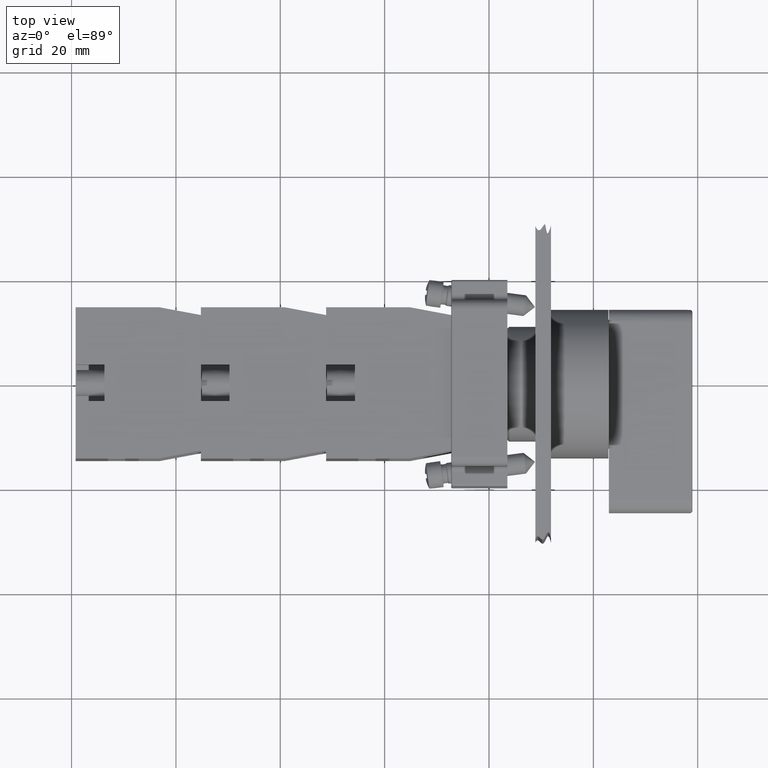
[diagram: clean part render]
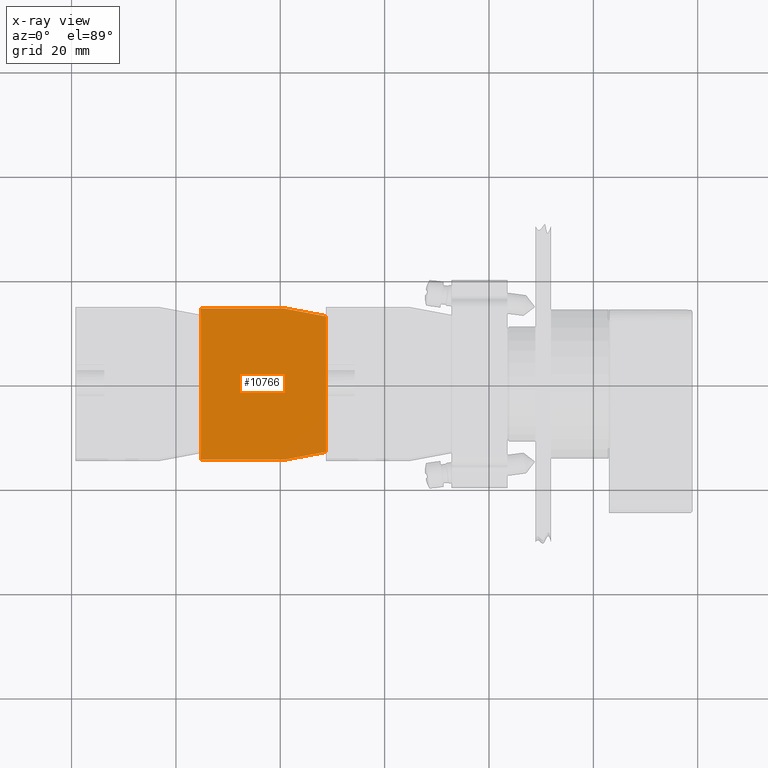
[diagram: x-ray — body ghosted, one internal face saturated and labeled with its STEP entity id]
A machine part, top view, then the same camera in x-ray: the body is ghosted and one INTERNAL B-rep face — a face not visible from any outside direction — is saturated and labeled: STEP entity #10766.
In plain terms, the highlighted planar face has unit normal (-0, -0, 1).
Its self-contained STEP definition (entity closure, byte-faithful):
#9071=CARTESIAN_POINT('',(-44.936741828918471,23.797073323279623,0.0));
#9072=VERTEX_POINT('',#9071);
#9079=CARTESIAN_POINT('',(-44.936741828918457,7.797073323279626,0.0));
#9080=VERTEX_POINT('',#9079);
#9081=CARTESIAN_POINT('',(-44.936741828918457,7.797073323279626,0.0));
#9082=DIRECTION('',(0.0,1.0,0.0));
#9083=VECTOR('',#9082,15.999999999999996);
#9084=LINE('',#9081,#9083);
#9085=EDGE_CURVE('',#9080,#9072,#9084,.T.);
#9262=CARTESIAN_POINT('',(-43.436741828918457,-0.202926676720380,0.0));
#9263=VERTEX_POINT('',#9262);
#9270=CARTESIAN_POINT('',(-17.436741828918457,-0.202926676720377,0.0));
#9271=VERTEX_POINT('',#9270);
#9272=CARTESIAN_POINT('',(-17.436741828918457,-0.202926676720377,0.0));
#9273=DIRECTION('',(-1.0,0.0,0.0));
#9274=VECTOR('',#9273,26.0);
#9275=LINE('',#9272,#9274);
#9276=EDGE_CURVE('',#9271,#9263,#9275,.T.);
#10620=CARTESIAN_POINT('',(-15.936741828918466,23.797073323279626,0.0));
#10621=VERTEX_POINT('',#10620);
#10628=CARTESIAN_POINT('',(-44.936741828918471,23.797073323279623,0.0));
#10629=DIRECTION('',(1.0,0.0,0.0));
#10630=VECTOR('',#10629,29.000000000000007);
#10631=LINE('',#10628,#10630);
#10632=EDGE_CURVE('',#9072,#10621,#10631,.T.);
#10668=CARTESIAN_POINT('',(-15.936741828918466,7.797073323279626,0.0));
#10669=VERTEX_POINT('',#10668);
#10676=CARTESIAN_POINT('',(-15.936741828918466,23.797073323279626,0.0));
#10677=DIRECTION('',(0.0,-1.0,0.0));
#10678=VECTOR('',#10677,16.0);
#10679=LINE('',#10676,#10678);
#10680=EDGE_CURVE('',#10621,#10669,#10679,.T.);
#10708=CARTESIAN_POINT('',(-15.936741828918466,7.797073323279626,0.0));
#10709=DIRECTION('',(-0.184288535050184,-0.982872186934322,0.0));
#10710=VECTOR('',#10709,8.139410298049855);
#10711=LINE('',#10708,#10710);
#10712=EDGE_CURVE('',#10669,#9271,#10711,.T.);
#10725=CARTESIAN_POINT('',(-43.436741828918457,-0.202926676720380,0.0));
#10726=DIRECTION('',(-0.184288535050185,0.982872186934322,0.0));
#10727=VECTOR('',#10726,8.139410298049860);
#10728=LINE('',#10725,#10727);
#10729=EDGE_CURVE('',#9263,#9080,#10728,.T.);
#10753=CARTESIAN_POINT('',(-30.436741828918464,12.124046801833057,0.0));
#10754=DIRECTION('',(0.0,0.0,1.0));
#10755=DIRECTION('',(1.0,0.0,0.0));
#10756=AXIS2_PLACEMENT_3D('',#10753,#10754,#10755);
#10757=PLANE('',#10756);
#10758=ORIENTED_EDGE('',*,*,#10632,.T.);
#10759=ORIENTED_EDGE('',*,*,#10680,.T.);
#10760=ORIENTED_EDGE('',*,*,#10712,.T.);
#10761=ORIENTED_EDGE('',*,*,#9276,.T.);
#10762=ORIENTED_EDGE('',*,*,#10729,.T.);
#10763=ORIENTED_EDGE('',*,*,#9085,.T.);
#10764=EDGE_LOOP('',(#10758,#10759,#10760,#10761,#10762,#10763));
#10765=FACE_OUTER_BOUND('',#10764,.T.);
#10766=ADVANCED_FACE('',(#10765),#10757,.F.);